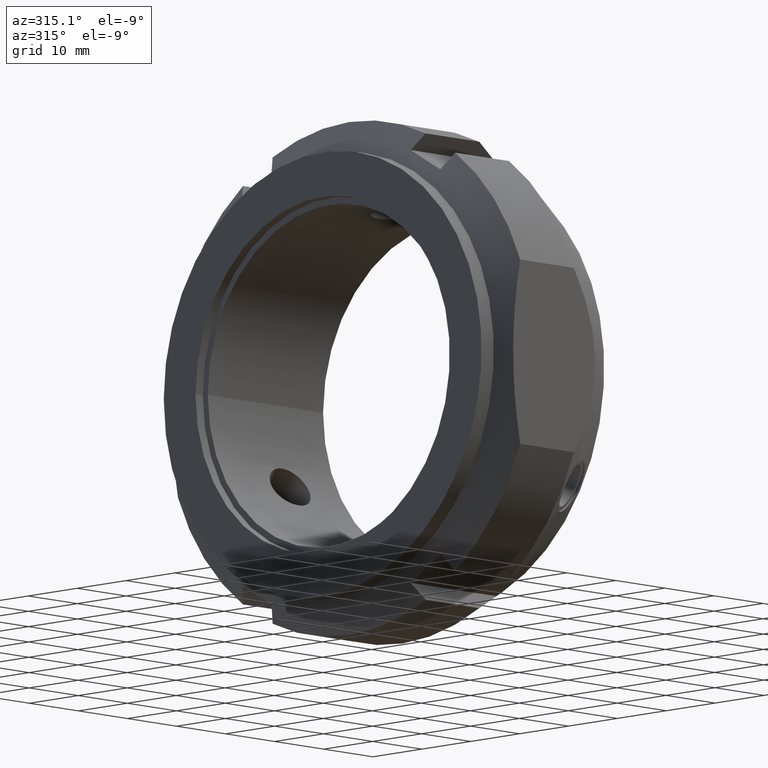
[diagram: clean part render]
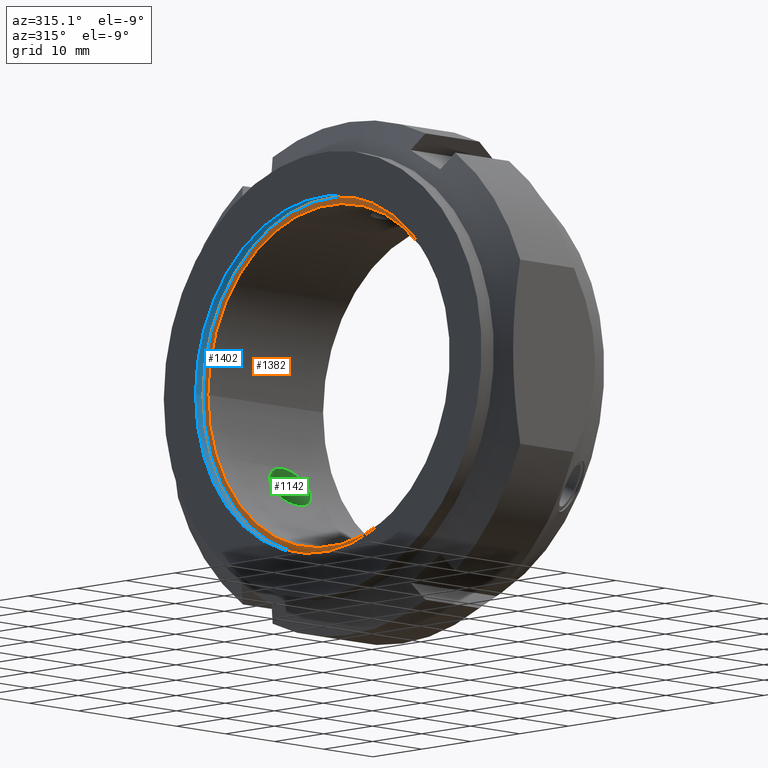
[diagram: same view with three faces highlighted in distinct colors, each labeled with its STEP entity id]
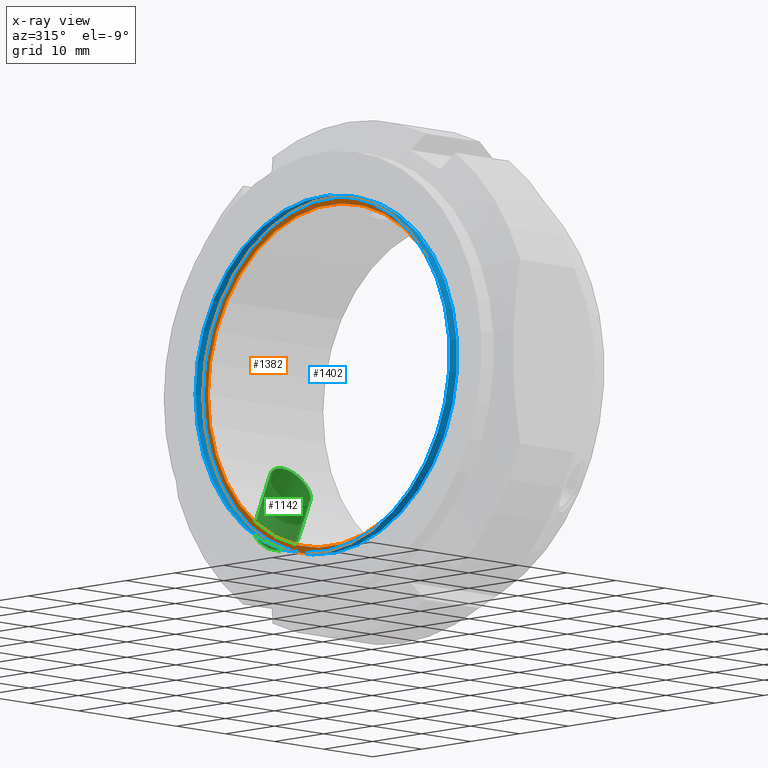
[diagram: x-ray of the same camera — body ghosted, the three highlighted faces saturated]
A machine part, auxiliary view with three faces highlighted in distinct colors.
The next image is the same camera in x-ray (body ghosted, the three faces saturated) — at least one of them is partly hidden behind the body in this view.
Their STEP definitions:

[orange] entity #1382 — the highlighted planar face has unit normal (-1, 0, 0).
#1355=CARTESIAN_POINT('',(1.499999999999993,25.5,0.0));
#1356=DIRECTION('',(-1.0,0.0,0.0));
#1357=DIRECTION('',(0.0,0.0,1.0));
#1358=AXIS2_PLACEMENT_3D('',#1355,#1356,#1357);
#1359=PLANE('',#1358);
#1360=CARTESIAN_POINT('',(1.499999999999993,26.0,0.0));
#1361=VERTEX_POINT('',#1360);
#1362=CARTESIAN_POINT('',(1.499999999999993,0.0,0.0));
#1363=DIRECTION('',(1.0,0.0,0.0));
#1364=DIRECTION('',(0.0,1.0,0.0));
#1365=AXIS2_PLACEMENT_3D('',#1362,#1363,#1364);
#1366=CIRCLE('',#1365,26.0);
#1367=EDGE_CURVE('',#1361,#1361,#1366,.T.);
#1368=ORIENTED_EDGE('',*,*,#1367,.F.);
#1369=EDGE_LOOP('',(#1368));
#1370=FACE_OUTER_BOUND('',#1369,.T.);
#1371=CARTESIAN_POINT('',(1.499999999999993,25.0,0.0));
#1372=VERTEX_POINT('',#1371);
#1373=CARTESIAN_POINT('',(1.499999999999993,0.0,0.0));
#1374=DIRECTION('',(1.0,0.0,0.0));
#1375=DIRECTION('',(0.0,1.0,0.0));
#1376=AXIS2_PLACEMENT_3D('',#1373,#1374,#1375);
#1377=CIRCLE('',#1376,25.0);
#1378=EDGE_CURVE('',#1372,#1372,#1377,.T.);
#1379=ORIENTED_EDGE('',*,*,#1378,.T.);
#1380=EDGE_LOOP('',(#1379));
#1381=FACE_BOUND('',#1380,.T.);
#1382=ADVANCED_FACE('',(#1370,#1381),#1359,.T.);

[blue] entity #1402 — the highlighted cylindrical surface (bore or boss wall) has radius 26 mm, axis along (1, 0, 0).
#1360=CARTESIAN_POINT('',(1.499999999999993,26.0,0.0));
#1361=VERTEX_POINT('',#1360);
#1362=CARTESIAN_POINT('',(1.499999999999993,0.0,0.0));
#1363=DIRECTION('',(1.0,0.0,0.0));
#1364=DIRECTION('',(0.0,1.0,0.0));
#1365=AXIS2_PLACEMENT_3D('',#1362,#1363,#1364);
#1366=CIRCLE('',#1365,26.0);
#1367=EDGE_CURVE('',#1361,#1361,#1366,.T.);
#1383=CARTESIAN_POINT('',(0.749999999999993,0.0,0.0));
#1384=DIRECTION('',(1.0,0.0,0.0));
#1385=DIRECTION('',(0.0,1.0,0.0));
#1386=AXIS2_PLACEMENT_3D('',#1383,#1384,#1385);
#1387=CYLINDRICAL_SURFACE('',#1386,26.0);
#1388=CARTESIAN_POINT('',(-6.938894E-015,26.0,0.0));
#1389=VERTEX_POINT('',#1388);
#1390=CARTESIAN_POINT('',(-6.938894E-015,0.0,0.0));
#1391=DIRECTION('',(1.0,0.0,0.0));
#1392=DIRECTION('',(0.0,1.0,0.0));
#1393=AXIS2_PLACEMENT_3D('',#1390,#1391,#1392);
#1394=CIRCLE('',#1393,26.0);
#1395=EDGE_CURVE('',#1389,#1389,#1394,.T.);
#1396=ORIENTED_EDGE('',*,*,#1395,.F.);
#1397=EDGE_LOOP('',(#1396));
#1398=FACE_OUTER_BOUND('',#1397,.T.);
#1399=ORIENTED_EDGE('',*,*,#1367,.T.);
#1400=EDGE_LOOP('',(#1399));
#1401=FACE_BOUND('',#1400,.T.);
#1402=ADVANCED_FACE('',(#1398,#1401),#1387,.F.);

[green] entity #1142 — the highlighted cylindrical surface (bore or boss wall) has radius 3.3235 mm, axis along (0.5, 0.75, -0.433).
#1085=CARTESIAN_POINT('',(16.750000000000011,24.374999999999982,-14.072912811497137));
#1086=DIRECTION('',(0.500000000000001,0.75,-0.43301270189222));
#1087=DIRECTION('',(0.0,-0.5,-0.866025403784438));
#1088=AXIS2_PLACEMENT_3D('',#1085,#1086,#1087);
#1089=CYLINDRICAL_SURFACE('',#1088,3.323500000000001);
#1090=CARTESIAN_POINT('',(14.805643964883245,23.120215947324844,-9.510815661606848));
#1091=VERTEX_POINT('',#1090);
#1092=CARTESIAN_POINT('',(14.805643964883245,23.120215947324844,-9.510815661606848));
#1093=CARTESIAN_POINT('',(15.304894691039312,23.120215947324844,-9.510815661606848));
#1094=CARTESIAN_POINT('',(15.840720372908335,23.086643281163184,-9.593765804025324));
#1095=CARTESIAN_POINT('',(16.841654194211419,22.943829753242497,-9.930464071410269));
#1096=CARTESIAN_POINT('',(17.306852910766175,22.834199065591694,-10.183777322040781));
#1097=CARTESIAN_POINT('',(17.99163546689762,22.579013857079442,-10.736143592401625));
#1098=CARTESIAN_POINT('',(18.27809071205164,22.426733233449983,-11.054272133135514));
#1099=CARTESIAN_POINT('',(18.66853138670723,22.067179250196691,-11.75563255534559));
#1100=CARTESIAN_POINT('',(18.771403969044105,21.859036787627243,-12.139037679312437));
#1101=CARTESIAN_POINT('',(18.771403969044105,21.442233401594674,-12.860962320687594));
#1102=CARTESIAN_POINT('',(18.668531386707226,21.214266055582986,-13.232921542862407));
#1103=CARTESIAN_POINT('',(18.278090712051632,20.786647104366725,-13.894984637496679));
#1104=CARTESIAN_POINT('',(17.991635466897616,20.587280018237031,-14.185927796430867));
#1105=CARTESIAN_POINT('',(17.306852910766167,20.236509400167009,-14.683107804852931));
#1106=CARTESIAN_POINT('',(16.841654194211412,20.071949033831164,-14.90470739070814));
#1107=CARTESIAN_POINT('',(15.840720372908329,19.851766544825942,-15.196736667584005));
#1108=CARTESIAN_POINT('',(15.30489469103931,19.796715947324838,-15.267286520562012));
#1109=CARTESIAN_POINT('',(14.332065981515935,19.796715947324838,-15.267286520562012));
#1110=CARTESIAN_POINT('',(13.82235574579761,19.846702000878981,-15.203268751214598));
#1111=CARTESIAN_POINT('',(12.878147793072204,20.058735107850161,-14.922402845635549));
#1112=CARTESIAN_POINT('',(12.443835895402106,20.220651997662422,-14.704832273042525));
#1113=CARTESIAN_POINT('',(11.802001932250249,20.574266450844895,-14.204964509020947));
#1114=CARTESIAN_POINT('',(11.537350820708475,20.779702896518124,-13.905560058038823));
#1115=CARTESIAN_POINT('',(11.184435699478739,21.214793338890754,-13.232278579815699));
#1116=CARTESIAN_POINT('',(11.096109490437216,21.443897931693026,-12.85807926998652));
#1117=CARTESIAN_POINT('',(11.096109490437216,21.857372257528894,-12.141920730013506));
#1118=CARTESIAN_POINT('',(11.184435699478739,22.066886069518429,-11.756410677608462));
#1119=CARTESIAN_POINT('',(11.537350820708475,22.43241971237088,-11.042970562458391));
#1120=CARTESIAN_POINT('',(11.802001932250249,22.588993350090917,-10.715355156151126));
#1121=CARTESIAN_POINT('',(12.443835895402104,22.845084305675289,-10.159182174538975));
#1122=CARTESIAN_POINT('',(12.878147793072202,22.952547503750651,-9.910172748363282));
#1123=CARTESIAN_POINT('',(13.822355745797609,23.089767959553438,-9.586113738493371));
#1124=CARTESIAN_POINT('',(14.332065981515941,23.120215947324837,-9.510815661606848));
#1125=CARTESIAN_POINT('',(14.805643964883251,23.120215947324837,-9.510815661606848));
#1126=B_SPLINE_CURVE_WITH_KNOTS('',3,(#1092,#1093,#1094,#1095,#1096,#1097,#1098,#1099,#1100,#1101,#1102,#1103,#1104,#1105,#1106,#1107,#1108,#1109,#1110,#1111,#1112,#1113,#1114,#1115,#1116,#1117,#1118,#1119,#1120,#1121,#1122,#1123,#1124,#1125),.UNSPECIFIED.,.T.,.U.,(4,2,2,2,2,2,2,2,2,2,2,2,2,2,2,2,4),(0.0,0.14977521784682,0.299550435693639,0.424591451503411,0.549632467313182,0.674673483122953,0.799714498932724,0.949489716779544,1.099264934626364,1.241338329636556,1.383411724646749,1.507454022397509,1.63149632014827,1.75553861789903,1.879580915649791,2.021654310659983,2.163727705670176),.UNSPECIFIED.);
#1127=EDGE_CURVE('',#1091,#1091,#1126,.T.);
#1128=ORIENTED_EDGE('',*,*,#1127,.F.);
#1129=EDGE_LOOP('',(#1128));
#1130=FACE_OUTER_BOUND('',#1129,.T.);
#1131=CARTESIAN_POINT('',(20.500000000000014,28.338249999999981,-20.198743505166362));
#1132=VERTEX_POINT('',#1131);
#1133=CARTESIAN_POINT('',(20.500000000000021,29.999999999999986,-17.320508075688782));
#1134=DIRECTION('',(0.500000000000001,0.75,-0.43301270189222));
#1135=DIRECTION('',(0.0,-0.5,-0.866025403784438));
#1136=AXIS2_PLACEMENT_3D('',#1133,#1134,#1135);
#1137=CIRCLE('',#1136,3.323500000000001);
#1138=EDGE_CURVE('',#1132,#1132,#1137,.T.);
#1139=ORIENTED_EDGE('',*,*,#1138,.T.);
#1140=EDGE_LOOP('',(#1139));
#1141=FACE_BOUND('',#1140,.T.);
#1142=ADVANCED_FACE('',(#1130,#1141),#1089,.F.);